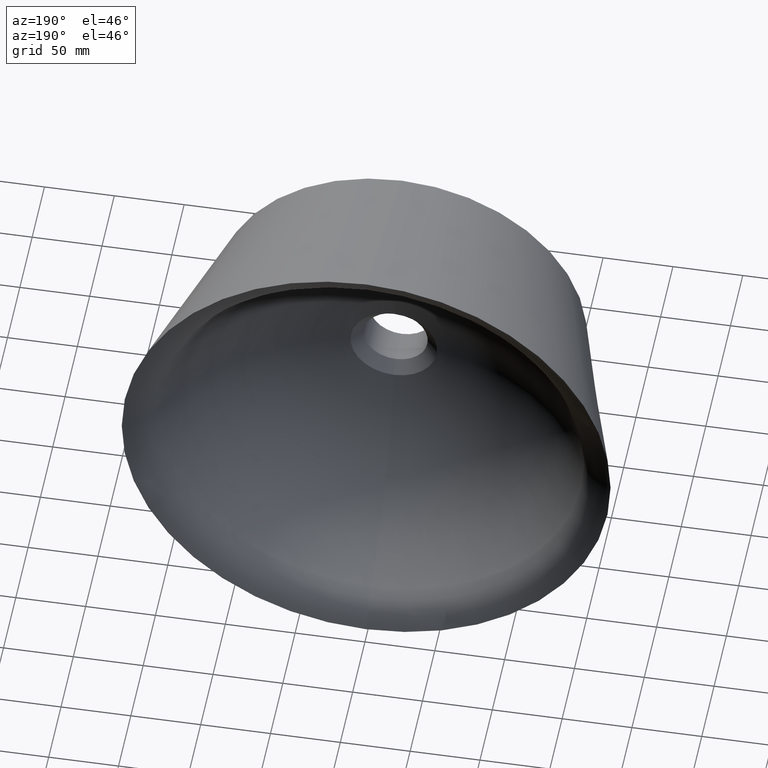
[diagram: clean part render]
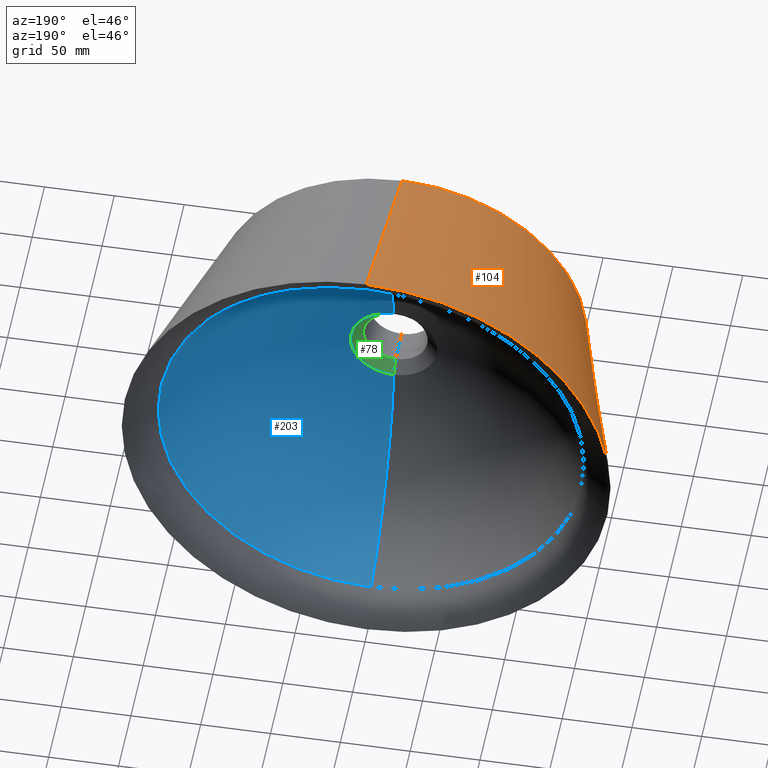
[diagram: same view with three faces highlighted in distinct colors, each labeled with its STEP entity id]
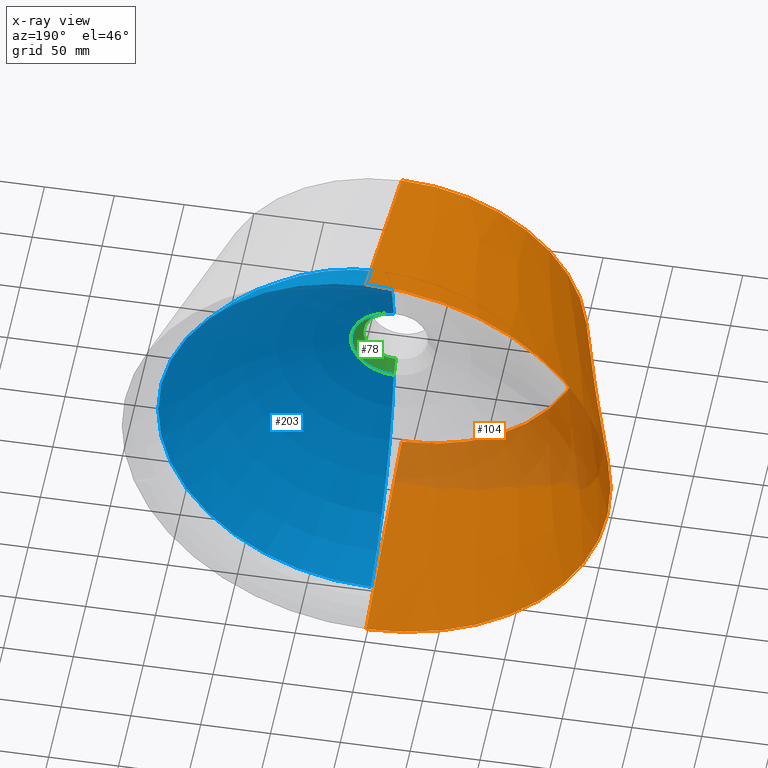
[diagram: x-ray of the same camera — body ghosted, the three highlighted faces saturated]
A machine part, auxiliary view with three faces highlighted in distinct colors.
The next image is the same camera in x-ray (body ghosted, the three faces saturated) — at least one of them is partly hidden behind the body in this view.
Their STEP definitions:

[orange] entity #104 — the highlighted conical surface has half-angle 16.336 deg.
#11 = CONICAL_SURFACE ( 'NONE', #99, 175.0000000000000000, 0.2851177351725961400 ) ;
#41 = EDGE_CURVE ( 'NONE', #244, #154, #311, .T. ) ;
#49 = EDGE_LOOP ( 'NONE', ( #80, #50, #167, #97 ) ) ;
#50 = ORIENTED_EDGE ( 'NONE', *, *, #317, .F. ) ;
#60 = DIRECTION ( 'NONE',  ( -0.0000000000000000000, -1.000000000000000000, -0.0000000000000000000 ) ) ;
#69 = CARTESIAN_POINT ( 'NONE',  ( 1.882894453689055400E-014, -3.469446951953614200E-015, -132.5000000000000000 ) ) ;
#74 = CARTESIAN_POINT ( 'NONE',  ( 0.0000000000000000000, -3.469446951953614200E-015, 132.5000000000000000 ) ) ;
#75 = DIRECTION ( 'NONE',  ( 0.0000000000000000000, 0.9596285438852135700, 0.2812704352767004800 ) ) ;
#79 = VECTOR ( 'NONE', #75, 1000.000000000000100 ) ;
#80 = ORIENTED_EDGE ( 'NONE', *, *, #41, .F. ) ;
#91 = DIRECTION ( 'NONE',  ( 0.0000000000000000000, 1.000000000000000000, 0.0000000000000000000 ) ) ;
#97 = ORIENTED_EDGE ( 'NONE', *, *, #150, .T. ) ;
#99 = AXIS2_PLACEMENT_3D ( 'NONE', #272, #91, #344 ) ;
#104 = ADVANCED_FACE ( 'NONE', ( #199 ), #11, .T. ) ;
#109 = DIRECTION ( 'NONE',  ( 0.0000000000000000000, 0.0000000000000000000, -1.000000000000000000 ) ) ;
#140 = CIRCLE ( 'NONE', #237, 175.0000000000000000 ) ;
#144 = DIRECTION ( 'NONE',  ( -0.0000000000000000000, -1.000000000000000000, -0.0000000000000000000 ) ) ;
#150 = EDGE_CURVE ( 'NONE', #247, #154, #140, .T. ) ;
#154 = VERTEX_POINT ( 'NONE', #292 ) ;
#167 = ORIENTED_EDGE ( 'NONE', *, *, #251, .T. ) ;
#175 = CARTESIAN_POINT ( 'NONE',  ( 0.0000000000000000000, 144.9999999999999400, 175.0000000000000000 ) ) ;
#196 = DIRECTION ( 'NONE',  ( 0.0000000000000000000, 0.0000000000000000000, -1.000000000000000000 ) ) ;
#199 = FACE_OUTER_BOUND ( 'NONE', #49, .T. ) ;
#210 = CARTESIAN_POINT ( 'NONE',  ( 2.143131898507867900E-014, 144.9999999999999400, -175.0000000000000000 ) ) ;
#237 = AXIS2_PLACEMENT_3D ( 'NONE', #342, #144, #196 ) ;
#242 = DIRECTION ( 'NONE',  ( 3.444569382563940100E-017, 0.9596285438852135700, -0.2812704352767004800 ) ) ;
#244 = VERTEX_POINT ( 'NONE', #69 ) ;
#247 = VERTEX_POINT ( 'NONE', #252 ) ;
#251 = EDGE_CURVE ( 'NONE', #274, #247, #348, .T. ) ;
#252 = CARTESIAN_POINT ( 'NONE',  ( 2.143131898507863200E-014, 144.9999999999999400, 174.9999999999996000 ) ) ;
#272 = CARTESIAN_POINT ( 'NONE',  ( 0.0000000000000000000, 144.9999999999999400, 0.0000000000000000000 ) ) ;
#274 = VERTEX_POINT ( 'NONE', #74 ) ;
#292 = CARTESIAN_POINT ( 'NONE',  ( 0.0000000000000000000, 144.9999999999999400, -174.9999999999996000 ) ) ;
#301 = VECTOR ( 'NONE', #242, 1000.000000000000100 ) ;
#304 = AXIS2_PLACEMENT_3D ( 'NONE', #307, #60, #109 ) ;
#307 = CARTESIAN_POINT ( 'NONE',  ( 0.0000000000000000000, -3.469446951953614200E-015, 0.0000000000000000000 ) ) ;
#311 = LINE ( 'NONE', #210, #301 ) ;
#317 = EDGE_CURVE ( 'NONE', #274, #244, #334, .T. ) ;
#334 = CIRCLE ( 'NONE', #304, 132.5000000000000000 ) ;
#342 = CARTESIAN_POINT ( 'NONE',  ( 0.0000000000000000000, 144.9999999999999400, 0.0000000000000000000 ) ) ;
#344 = DIRECTION ( 'NONE',  ( 0.0000000000000000000, 0.0000000000000000000, 1.000000000000000000 ) ) ;
#348 = LINE ( 'NONE', #175, #79 ) ;

[blue] entity #203 — the highlighted toroidal blend (fillet) surface has major radius 6.8031 mm and minor (blend) radius 160 mm.
#7 = EDGE_CURVE ( 'NONE', #34, #148, #341, .T. ) ;
#19 = CIRCLE ( 'NONE', #277, 152.4839111358805900 ) ;
#34 = VERTEX_POINT ( 'NONE', #177 ) ;
#45 = DIRECTION ( 'NONE',  ( 1.000000000000000000, 0.0000000000000000000, -1.224646799147353200E-016 ) ) ;
#48 = AXIS2_PLACEMENT_3D ( 'NONE', #61, #45, #189 ) ;
#61 = CARTESIAN_POINT ( 'NONE',  ( 8.331452103402774300E-016, 191.1597682761677100, 6.803146923017686200 ) ) ;
#62 = CARTESIAN_POINT ( 'NONE',  ( 0.0000000000000000000, 124.9999999999999900, 0.0000000000000000000 ) ) ;
#107 = VERTEX_POINT ( 'NONE', #143 ) ;
#114 = DIRECTION ( 'NONE',  ( -0.0000000000000000000, -1.000000000000000000, -0.0000000000000000000 ) ) ;
#115 = DIRECTION ( 'NONE',  ( -0.0000000000000000000, -1.000000000000000000, -0.0000000000000000000 ) ) ;
#123 = ORIENTED_EDGE ( 'NONE', *, *, #235, .F. ) ;
#125 = EDGE_LOOP ( 'NONE', ( #123, #314, #329, #236 ) ) ;
#132 = FACE_OUTER_BOUND ( 'NONE', #125, .T. ) ;
#137 = AXIS2_PLACEMENT_3D ( 'NONE', #338, #313, #315 ) ;
#139 = CARTESIAN_POINT ( 'NONE',  ( 0.0000000000000000000, 191.1597682761677100, 0.0000000000000000000 ) ) ;
#143 = CARTESIAN_POINT ( 'NONE',  ( 1.867389336940256900E-014, 124.9999999999999900, 152.4839111358806700 ) ) ;
#148 = VERTEX_POINT ( 'NONE', #178 ) ;
#164 = CARTESIAN_POINT ( 'NONE',  ( 1.123514922337969400E-014, 33.00000000000004300, 31.00000000000000000 ) ) ;
#177 = CARTESIAN_POINT ( 'NONE',  ( 0.0000000000000000000, 124.9999999999999900, -152.4839111358806700 ) ) ;
#178 = CARTESIAN_POINT ( 'NONE',  ( 0.0000000000000000000, 33.00000000000004300, -31.00000000000000000 ) ) ;
#184 = CIRCLE ( 'NONE', #137, 31.00000000000000000 ) ;
#189 = DIRECTION ( 'NONE',  ( -1.224646799147353200E-016, 0.0000000000000000000, -1.000000000000000000 ) ) ;
#203 = ADVANCED_FACE ( 'NONE', ( #132 ), #318, .F. ) ;
#206 = CIRCLE ( 'NONE', #48, 160.0000000000000300 ) ;
#211 = DIRECTION ( 'NONE',  ( 0.0000000000000000000, 0.0000000000000000000, -1.000000000000000000 ) ) ;
#235 = EDGE_CURVE ( 'NONE', #107, #279, #206, .T. ) ;
#236 = ORIENTED_EDGE ( 'NONE', *, *, #240, .T. ) ;
#240 = EDGE_CURVE ( 'NONE', #148, #279, #184, .T. ) ;
#243 = AXIS2_PLACEMENT_3D ( 'NONE', #262, #284, #299 ) ;
#262 = CARTESIAN_POINT ( 'NONE',  ( 0.0000000000000000000, 191.1597682761677100, -6.803146923017686200 ) ) ;
#266 = AXIS2_PLACEMENT_3D ( 'NONE', #139, #115, #211 ) ;
#277 = AXIS2_PLACEMENT_3D ( 'NONE', #62, #114, #303 ) ;
#279 = VERTEX_POINT ( 'NONE', #164 ) ;
#284 = DIRECTION ( 'NONE',  ( -1.000000000000000000, 0.0000000000000000000, 0.0000000000000000000 ) ) ;
#299 = DIRECTION ( 'NONE',  ( 0.0000000000000000000, 0.0000000000000000000, 1.000000000000000000 ) ) ;
#303 = DIRECTION ( 'NONE',  ( 0.0000000000000000000, 0.0000000000000000000, -1.000000000000000000 ) ) ;
#313 = DIRECTION ( 'NONE',  ( -0.0000000000000000000, -1.000000000000000000, -0.0000000000000000000 ) ) ;
#314 = ORIENTED_EDGE ( 'NONE', *, *, #349, .F. ) ;
#315 = DIRECTION ( 'NONE',  ( 0.0000000000000000000, 0.0000000000000000000, -1.000000000000000000 ) ) ;
#318 = TOROIDAL_SURFACE ( 'NONE', #266, 6.803146923017686200, 160.0000000000000300 ) ;
#329 = ORIENTED_EDGE ( 'NONE', *, *, #7, .T. ) ;
#338 = CARTESIAN_POINT ( 'NONE',  ( 0.0000000000000000000, 33.00000000000004300, 0.0000000000000000000 ) ) ;
#341 = CIRCLE ( 'NONE', #243, 160.0000000000000300 ) ;
#349 = EDGE_CURVE ( 'NONE', #34, #107, #19, .T. ) ;

[green] entity #78 — the highlighted conical surface has half-angle 45 deg.
#2 = EDGE_CURVE ( 'NONE', #101, #279, #10, .T. ) ;
#10 = LINE ( 'NONE', #24, #162 ) ;
#24 = CARTESIAN_POINT ( 'NONE',  ( 0.0000000000000000000, 25.00000000000001400, 23.00000000000000000 ) ) ;
#37 = ORIENTED_EDGE ( 'NONE', *, *, #240, .F. ) ;
#39 = DIRECTION ( 'NONE',  ( 0.0000000000000000000, 0.7071067811865487900, 0.7071067811865463500 ) ) ;
#53 = DIRECTION ( 'NONE',  ( 0.0000000000000000000, 0.0000000000000000000, -1.000000000000000000 ) ) ;
#56 = ORIENTED_EDGE ( 'NONE', *, *, #141, .T. ) ;
#78 = ADVANCED_FACE ( 'NONE', ( #312 ), #326, .F. ) ;
#83 = DIRECTION ( 'NONE',  ( 0.0000000000000000000, 0.0000000000000000000, 1.000000000000000000 ) ) ;
#85 = CARTESIAN_POINT ( 'NONE',  ( 0.0000000000000000000, 25.00000000000001400, 0.0000000000000000000 ) ) ;
#89 = EDGE_CURVE ( 'NONE', #333, #148, #174, .T. ) ;
#92 = DIRECTION ( 'NONE',  ( 8.659560562354918100E-017, 0.7071067811865487900, -0.7071067811865463500 ) ) ;
#101 = VERTEX_POINT ( 'NONE', #325 ) ;
#121 = CARTESIAN_POINT ( 'NONE',  ( 0.0000000000000000000, 25.00000000000001400, 0.0000000000000000000 ) ) ;
#136 = ORIENTED_EDGE ( 'NONE', *, *, #89, .F. ) ;
#137 = AXIS2_PLACEMENT_3D ( 'NONE', #338, #313, #315 ) ;
#141 = EDGE_CURVE ( 'NONE', #333, #101, #298, .T. ) ;
#142 = DIRECTION ( 'NONE',  ( 0.0000000000000000000, 1.000000000000000000, 0.0000000000000000000 ) ) ;
#148 = VERTEX_POINT ( 'NONE', #178 ) ;
#162 = VECTOR ( 'NONE', #39, 1000.000000000000000 ) ;
#164 = CARTESIAN_POINT ( 'NONE',  ( 1.123514922337969400E-014, 33.00000000000004300, 31.00000000000000000 ) ) ;
#172 = EDGE_LOOP ( 'NONE', ( #136, #56, #250, #37 ) ) ;
#174 = LINE ( 'NONE', #249, #265 ) ;
#176 = CARTESIAN_POINT ( 'NONE',  ( 0.0000000000000000000, 25.00000000000001400, -23.00000000000000000 ) ) ;
#178 = CARTESIAN_POINT ( 'NONE',  ( 0.0000000000000000000, 33.00000000000004300, -31.00000000000000000 ) ) ;
#184 = CIRCLE ( 'NONE', #137, 31.00000000000000000 ) ;
#232 = AXIS2_PLACEMENT_3D ( 'NONE', #85, #142, #83 ) ;
#240 = EDGE_CURVE ( 'NONE', #148, #279, #184, .T. ) ;
#249 = CARTESIAN_POINT ( 'NONE',  ( 2.816687638038912400E-015, 25.00000000000001400, -23.00000000000000000 ) ) ;
#250 = ORIENTED_EDGE ( 'NONE', *, *, #2, .T. ) ;
#256 = AXIS2_PLACEMENT_3D ( 'NONE', #121, #300, #53 ) ;
#265 = VECTOR ( 'NONE', #92, 1000.000000000000000 ) ;
#279 = VERTEX_POINT ( 'NONE', #164 ) ;
#298 = CIRCLE ( 'NONE', #256, 23.00000000000000000 ) ;
#300 = DIRECTION ( 'NONE',  ( -0.0000000000000000000, -1.000000000000000000, -0.0000000000000000000 ) ) ;
#312 = FACE_OUTER_BOUND ( 'NONE', #172, .T. ) ;
#313 = DIRECTION ( 'NONE',  ( -0.0000000000000000000, -1.000000000000000000, -0.0000000000000000000 ) ) ;
#315 = DIRECTION ( 'NONE',  ( 0.0000000000000000000, 0.0000000000000000000, -1.000000000000000000 ) ) ;
#325 = CARTESIAN_POINT ( 'NONE',  ( 2.816687638038912400E-015, 25.00000000000001400, 23.00000000000000000 ) ) ;
#326 = CONICAL_SURFACE ( 'NONE', #232, 23.00000000000000000, 0.7853981633974466100 ) ;
#333 = VERTEX_POINT ( 'NONE', #176 ) ;
#338 = CARTESIAN_POINT ( 'NONE',  ( 0.0000000000000000000, 33.00000000000004300, 0.0000000000000000000 ) ) ;